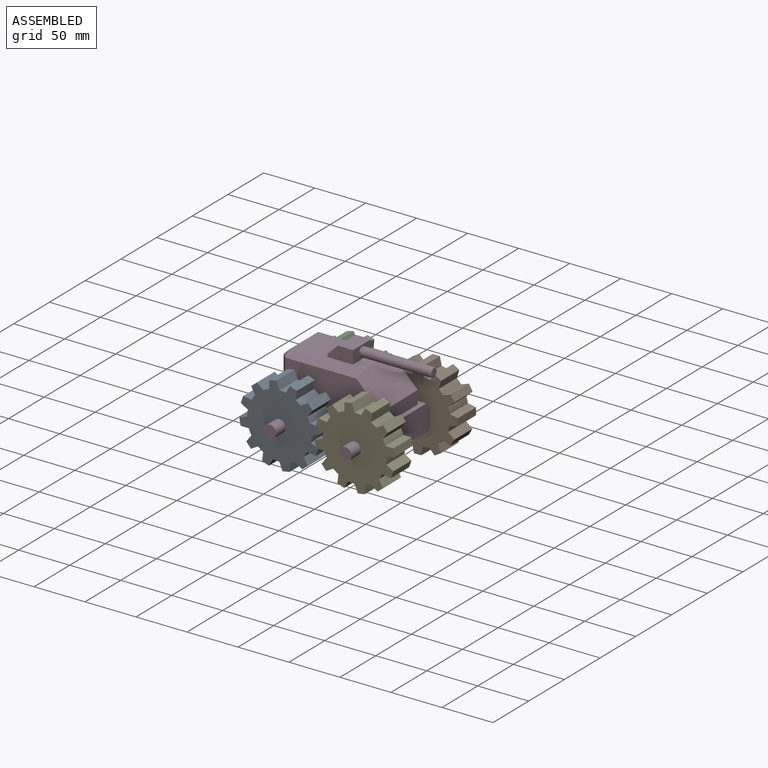
[diagram: assembled view]
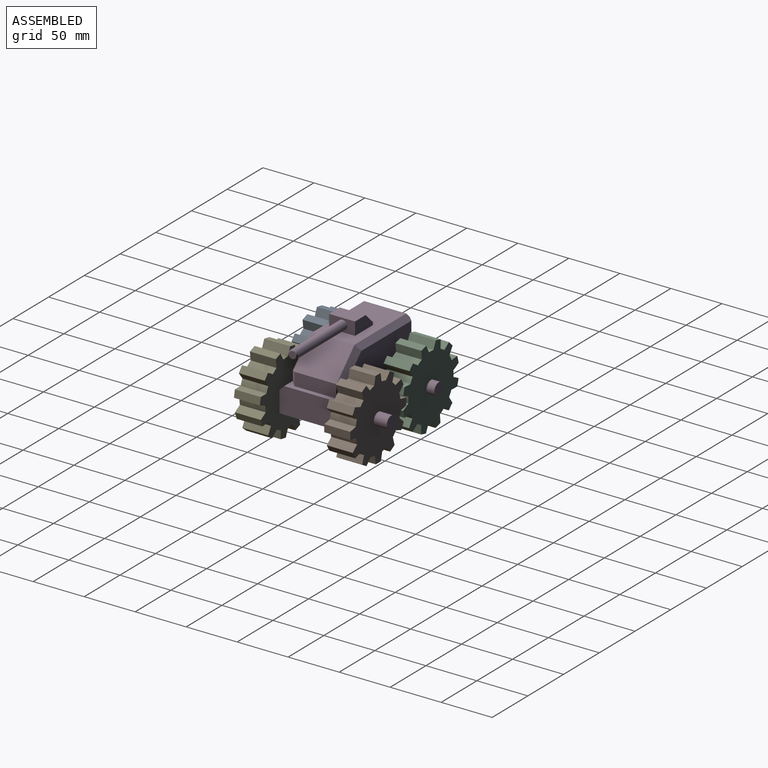
[diagram: assembled view, second angle]
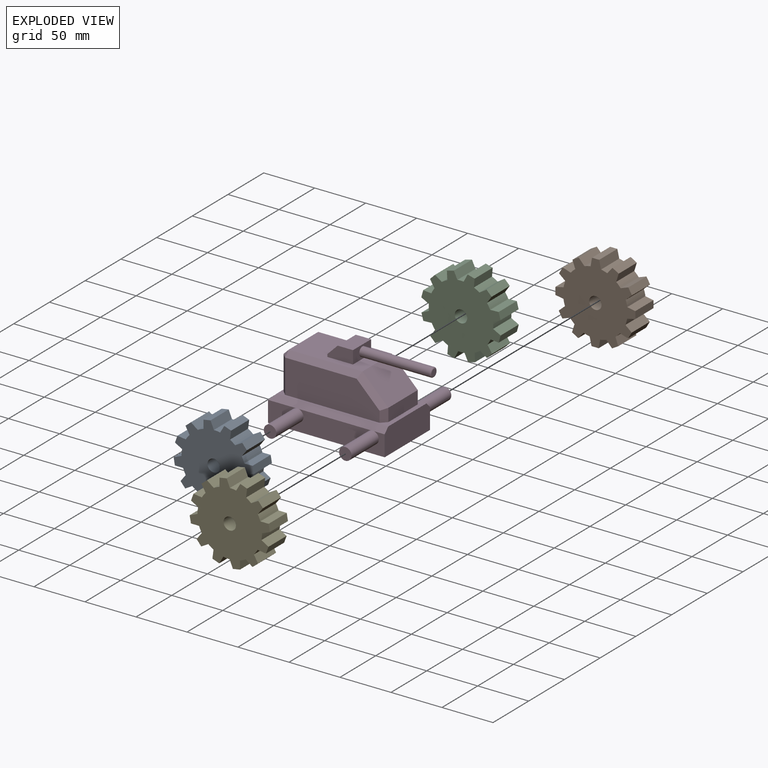
[diagram: exploded view]
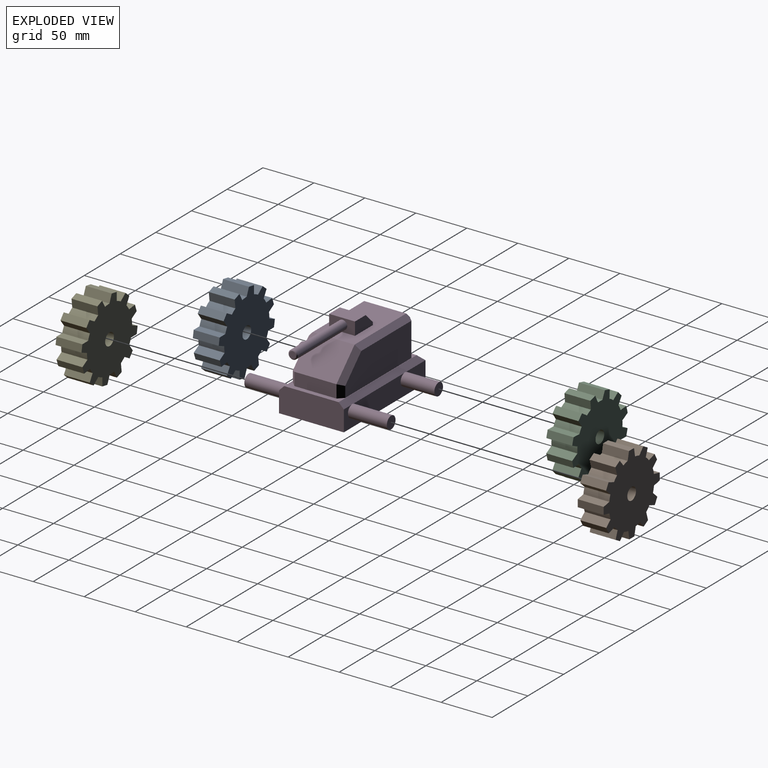
[diagram: exploded view, second angle]
ASSEMBLY  parts=5 mates=4
PART A: 51 faces, bbox 78.5x78.5x25.4 mm
  f0: plane 25.4x8.1mm, normal (0.22,0.98,0), area 210.8mm2, adj f1,f47,f48,f49
  f1: cylinder r=31.63mm len=25.4mm, axis (0,0,-1), area 157.8mm2, adj f0,f2,f48,f49
  f2: plane 25.4x6.16mm, normal (0.65,-0.76,0), area 205mm2, adj f1,f3,f48,f49
  f3: plane 25.4x6.11mm, normal (0.87,0.5,0), area 179.2mm2, adj f2,f4,f48,f49
  f4: plane 25.4x7.92mm, normal (-0.3,0.95,0), area 210.8mm2, adj f3,f5,f48,f49
  f5: cylinder r=31.63mm len=25.4mm, axis (0,0,-1), area 157.8mm2, adj f4,f6,f48,f49
  f6: plane 25.4x7.59mm, normal (0.94,-0.34,0), area 205mm2, adj f5,f7,f48,f49
  f7: plane 25.4x6.11mm, normal (0.5,0.87,0), area 179.2mm2, adj f6,f8,f48,f49
  f8: plane 25.4x6.11mm, normal (-0.74,0.68,0), area 210.8mm2, adj f7,f9,f48,f49
  f9: cylinder r=31.63mm len=25.4mm, axis (0,0,-1), area 157.8mm2, adj f8,f10,f48,f49
  f10: plane 25.4x7.94mm, normal (0.98,0.18,0), area 205mm2, adj f9,f11,f48,f49
  f11: plane 25.4x7.06mm, normal (0,1,0), area 179.2mm2, adj f10,f12,f48,f49
  f12: plane 25.4x8.1mm, normal (-0.98,0.22,0), area 210.8mm2, adj f11,f13,f48,f49
  f13: cylinder r=31.63mm len=25.4mm, axis (0,0,-1), area 157.8mm2, adj f12,f14,f48,f49
  f14: plane 25.4x6.16mm, normal (0.76,0.65,0), area 205mm2, adj f13,f15,f48,f49
  f15: plane 25.4x6.11mm, normal (-0.5,0.87,0), area 179.2mm2, adj f14,f16,f48,f49
  f16: plane 25.4x7.92mm, normal (-0.95,-0.3,0), area 210.8mm2, adj f15,f17,f48,f49
  f17: cylinder r=31.63mm len=25.4mm, axis (0,0,-1), area 157.8mm2, adj f16,f18,f48,f49
  f18: plane 25.4x7.59mm, normal (0.34,0.94,0), area 205mm2, adj f17,f19,f48,f49
  f19: plane 25.4x6.11mm, normal (-0.87,0.5,0), area 179.2mm2, adj f18,f20,f48,f49
  f20: plane 25.4x6.11mm, normal (-0.68,-0.74,0), area 210.8mm2, adj f19,f21,f48,f49
  f21: cylinder r=31.63mm len=25.4mm, axis (0,0,-1), area 157.8mm2, adj f20,f22,f48,f49
  f22: plane 25.4x7.94mm, normal (-0.18,0.98,0), area 205mm2, adj f21,f23,f48,f49
  f23: plane 25.4x7.06mm, normal (-1,0,0), area 179.2mm2, adj f22,f24,f48,f49
  f24: plane 25.4x8.1mm, normal (-0.22,-0.98,0), area 210.8mm2, adj f23,f25,f48,f49
  f25: cylinder r=31.63mm len=25.4mm, axis (0,0,-1), area 157.8mm2, adj f24,f26,f48,f49
  f26: plane 25.4x6.16mm, normal (-0.65,0.76,0), area 205mm2, adj f25,f27,f48,f49
  f27: plane 25.4x6.11mm, normal (-0.87,-0.5,0), area 179.2mm2, adj f26,f28,f48,f49
  f28: plane 25.4x7.92mm, normal (0.3,-0.95,0), area 210.8mm2, adj f27,f29,f48,f49
  f29: cylinder r=31.63mm len=25.4mm, axis (0,0,-1), area 157.8mm2, adj f28,f30,f48,f49
  f30: plane 25.4x7.59mm, normal (-0.94,0.34,0), area 205mm2, adj f29,f31,f48,f49
  f31: plane 25.4x6.11mm, normal (-0.5,-0.87,0), area 179.2mm2, adj f30,f32,f48,f49
  f32: plane 25.4x6.11mm, normal (0.74,-0.68,0), area 210.8mm2, adj f31,f33,f48,f49
  f33: cylinder r=31.63mm len=25.4mm, axis (0,0,-1), area 157.8mm2, adj f32,f34,f48,f49
  f34: plane 25.4x7.94mm, normal (-0.98,-0.18,0), area 205mm2, adj f33,f35,f48,f49
  f35: plane 25.4x7.06mm, normal (0,-1,0), area 179.2mm2, adj f34,f36,f48,f49
  f36: plane 25.4x8.1mm, normal (0.98,-0.22,0), area 210.8mm2, adj f35,f37,f48,f49
  f37: cylinder r=31.63mm len=25.4mm, axis (0,0,-1), area 157.8mm2, adj f36,f38,f48,f49
  f38: plane 25.4x6.16mm, normal (-0.76,-0.65,0), area 205mm2, adj f37,f39,f48,f49
  f39: plane 25.4x6.11mm, normal (0.5,-0.87,0), area 179.2mm2, adj f38,f40,f48,f49
  f40: plane 25.4x7.92mm, normal (0.95,0.3,0), area 210.8mm2, adj f39,f41,f48,f49
  f41: cylinder r=31.63mm len=25.4mm, axis (0,0,-1), area 157.8mm2, adj f40,f42,f48,f49
  f42: plane 25.4x7.59mm, normal (-0.34,-0.94,0), area 205mm2, adj f41,f43,f48,f49
  f43: plane 25.4x6.11mm, normal (0.87,-0.5,0), area 179.2mm2, adj f42,f44,f48,f49
  f44: plane 25.4x6.11mm, normal (0.68,0.74,0), area 210.8mm2, adj f43,f45,f48,f49
  f45: cylinder r=31.63mm len=25.4mm, axis (0,0,-1), area 157.8mm2, adj f44,f46,f48,f49
  f46: plane 25.4x7.94mm, normal (0.18,-0.98,0), area 205mm2, adj f45,f47,f48,f49
  f47: plane 25.4x7.06mm, normal (1,0,0), area 179.2mm2, adj f0,f46,f48,f49
  f48: plane 78.46x78.46mm, normal (0,0,1), area 3827.5mm2, adj f0,f1,f2,f3,f4,f5,f6,f7
  f49: plane 78.46x78.46mm, normal (0,0,-1), area 3827.5mm2, adj f0,f1,f2,f3,f4,f5,f6,f7
  f50: cylinder r=6.09mm len=25.4mm, axis (0,0,1), area 972.6mm2, adj f48,f49
PART B: same geometry as A
PART C: same geometry as A
PART D: 43 faces, bbox 140.5x139.7x76.2 mm
  f0: plane 72.25x41.2mm, normal (0,0,1), area 2339mm2, adj f19,f20,f21,f22,f23,f34,f38,f39
  f1: plane 109.22x53.34mm, normal (0,0,1), area 600.8mm2, adj f5,f15,f16,f17,f18,f28,f29,f30
  f2: plane 114.3x20.32mm, normal (0,1,0), area 2089.7mm2, adj f3,f5,f6,f7,f13,f28
  f3: plane 63.5x20.32mm, normal (-1,0,0), area 1290.3mm2, adj f2,f4,f6,f29
  f4: plane 114.3x20.32mm, normal (0,-1,0), area 2089.7mm2, adj f3,f5,f6,f9,f11,f30
  f5: plane 63.5x25.4mm, normal (1,0,0), area 1587.1mm2, adj f1,f2,f4,f6,f28,f30
  f6: plane 114.3x63.5mm, normal (0,0,-1), area 7258mm2, adj f2,f3,f4,f5
  f7: cylinder r=6.1mm len=33.19mm, axis (0,-1,0), area 1265.1mm2, adj f2,f8,f28
  f8: plane 12.19x12.19mm, normal (0,1,0), area 116.7mm2, adj f7
  f9: cylinder r=6.1mm len=38.27mm, axis (0,1,0), area 1459.6mm2, adj f4,f10,f30
  f10: plane 12.19x12.19mm, normal (0,-1,0), area 116.7mm2, adj f9
  f11: cylinder r=6.1mm len=38.27mm, axis (0,1,0), area 1459.6mm2, adj f4,f12,f30
  f12: plane 12.19x12.19mm, normal (0,-1,0), area 116.7mm2, adj f11
  f13: cylinder r=6.1mm len=38.27mm, axis (0,-1,0), area 1459.6mm2, adj f2,f14,f28
  f14: plane 12.19x12.19mm, normal (0,1,0), area 116.7mm2, adj f13
  f15: plane 92.57x33.02mm, normal (0,1,0), area 2805.2mm2, adj f1,f33,f36,f38,f41
  f16: plane 41.2x33.02mm, normal (-1,0,0), area 1360.6mm2, adj f1,f35,f39,f41
  f17: plane 92.57x33.02mm, normal (0,-1,0), area 2805.2mm2, adj f1,f31,f32,f34,f35
  f18: plane 41.2x12.7mm, normal (1,0,0), area 523.3mm2, adj f1,f19,f31,f33
  f19: plane 41.2x25.4mm, normal (0.71,0,0.71), area 1480.1mm2, adj f0,f18,f32,f36
  f20: plane 25.12x12.7mm, normal (0,1,0), area 267.4mm2, adj f0,f21,f23,f24,f25
  f21: plane 25.4x2.54mm, normal (-1,0,0), area 64.5mm2, adj f0,f20,f22,f25
  f22: plane 25.12x12.7mm, normal (0,-1,0), area 267.4mm2, adj f0,f21,f23,f24,f25
  f23: plane 25.4x12.7mm, normal (1,0,0), area 259mm2, adj f0,f20,f22,f24,f26
  f24: plane 25.4x14.96mm, normal (0,0,1), area 379.9mm2, adj f20,f22,f23,f25
  f25: plane 25.4x10.16mm, normal (-0.71,0,0.71), area 365mm2, adj f20,f21,f22,f24
  f26: cylinder r=4.5mm len=68.83mm, axis (-1,0,0), area 1946.3mm2, adj f23,f42
  f27: plane 6.46x6.46mm, normal (1,0,0), area 32.8mm2, adj f42
  f28: plane 114.3x5.08mm, normal (0,0.71,0.71), area 802mm2, adj f1,f2,f5,f7,f13,f29
  f29: plane 63.5x5.08mm, normal (-0.71,0,0.71), area 419.7mm2, adj f1,f3,f28,f30
  f30: plane 114.3x5.08mm, normal (0,-0.71,0.71), area 802mm2, adj f1,f4,f5,f9,f11,f29
  f31: plane 12.7x5.08mm, normal (0.71,-0.71,0), area 83.7mm2, adj f1,f17,f18,f32
  f32: plane 27.5x27.5mm, normal (0.5,-0.71,0.5), area 242.9mm2, adj f17,f19,f31,f34
  f33: plane 12.7x5.08mm, normal (0.71,0.71,0), area 83.7mm2, adj f1,f15,f18,f36
  f34: plane 72.25x5.08mm, normal (0,-0.71,0.71), area 511.5mm2, adj f0,f17,f32,f37
  f35: plane 33.02x5.08mm, normal (-0.71,-0.71,0), area 237.2mm2, adj f1,f16,f17,f37
  f36: plane 27.5x27.5mm, normal (0.5,0.71,0.5), area 242.9mm2, adj f15,f19,f33,f38
  f37: plane 5.08x5.08mm, normal (-0.58,-0.58,0.58), area 22.3mm2, adj f34,f35,f39
  f38: plane 72.25x5.08mm, normal (0,0.71,0.71), area 511.5mm2, adj f0,f15,f36,f40
  f39: plane 41.2x5.08mm, normal (-0.71,0,0.71), area 296mm2, adj f0,f16,f37,f40
  f40: plane 5.08x5.08mm, normal (-0.58,0.58,0.58), area 22.3mm2, adj f38,f39,f41
  f41: plane 33.02x5.08mm, normal (-0.71,0.71,0), area 237.2mm2, adj f1,f15,f16,f40
  f42: torus R=3.23mm, axis (1,0,0), area 50.6mm2, adj f26,f27
PART E: same geometry as A
PLACE A rot(axis=(-0.44,0.63,0.63),132.1deg) t=(-61.16,-61.84,-5.63)mm
PLACE B rot(axis=(-0.94,0.25,0.25),93.8deg) t=(12.61,26.66,-5.63)mm
PLACE C rot(axis=(0.86,-0.36,0.36),98.4deg) t=(-61.16,52.06,-5.63)mm
PLACE D t=(-32.23,-5.24,-20.03)mm
PLACE E rot(axis=(-0.25,0.68,0.68),152deg) t=(12.61,-61.84,-5.63)mm
MATE revolute A.f45 <-> D.f7  axis (0,1,0) through (-61.16,-36.44,-5.63)mm
MATE revolute B.f50 <-> D.f11  axis (0,-1,0) through (12.61,26.66,-5.63)mm
MATE revolute C.f45 <-> D.f7  axis (0,-1,0) through (-61.16,26.66,-5.63)mm
MATE revolute E.f45 <-> D.f11  axis (0,1,0) through (12.61,-36.44,-5.63)mm
